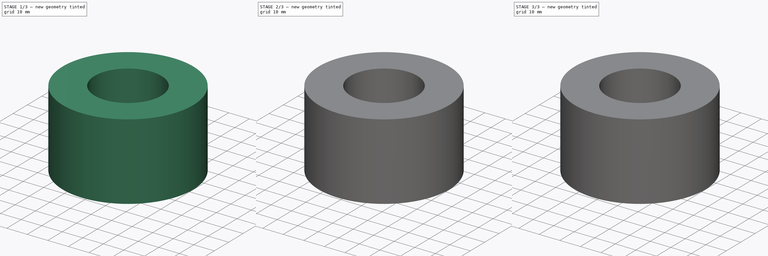
[diagram: build sequence overview — one tinted view per stage of 3, left to right]
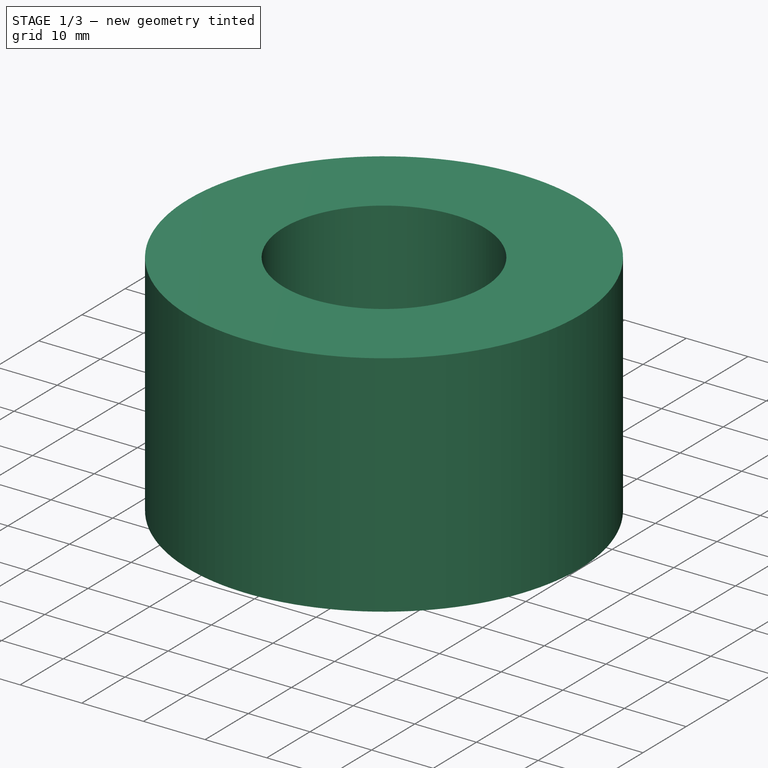
[diagram: stage 1 of 3 — iso view after this stage's code; geometry added in this stage tinted green]
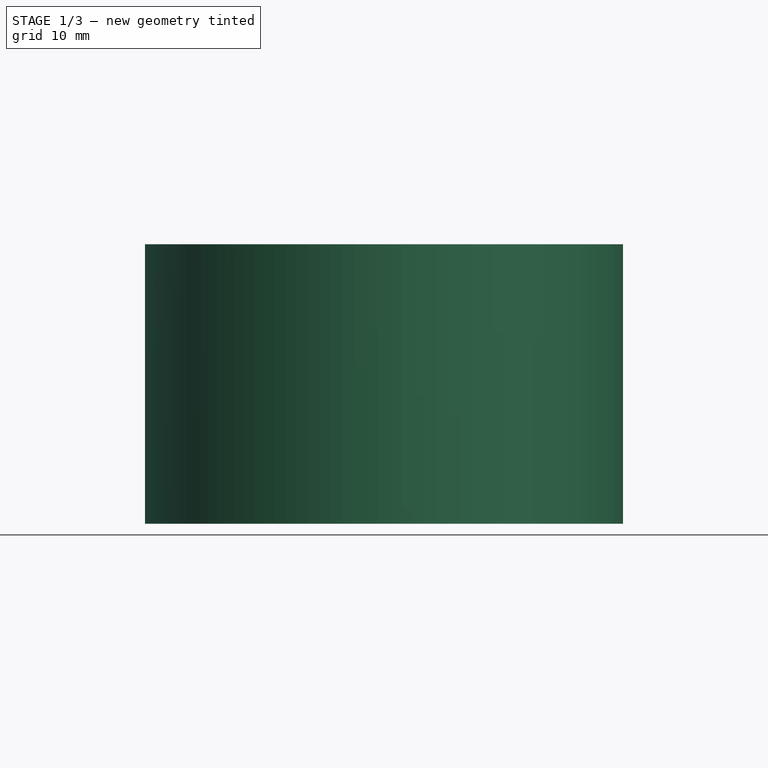
[diagram: stage 1 of 3 — front view after this stage's code; geometry added in this stage tinted green]
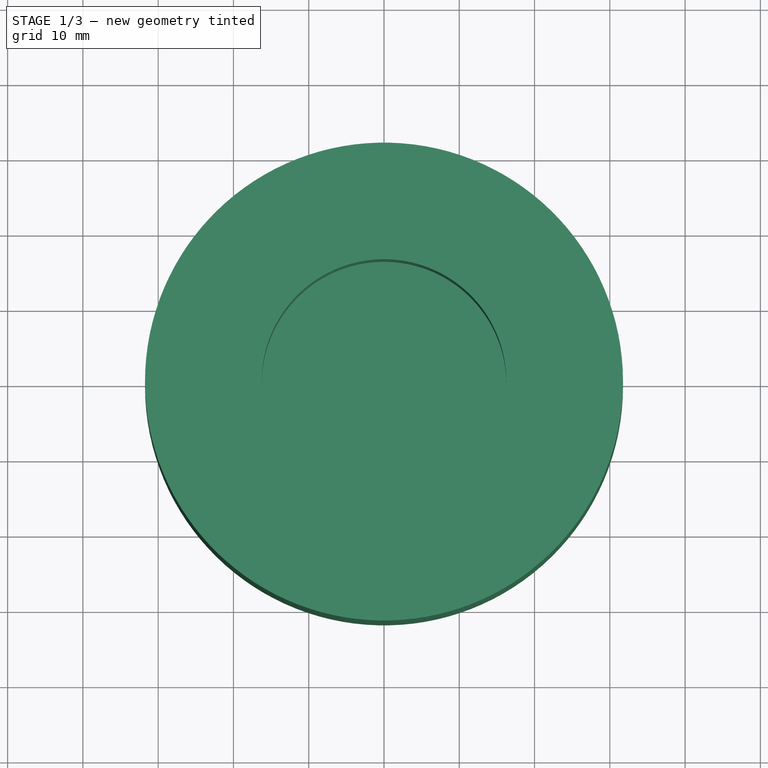
[diagram: stage 1 of 3 — top view after this stage's code; geometry added in this stage tinted green]
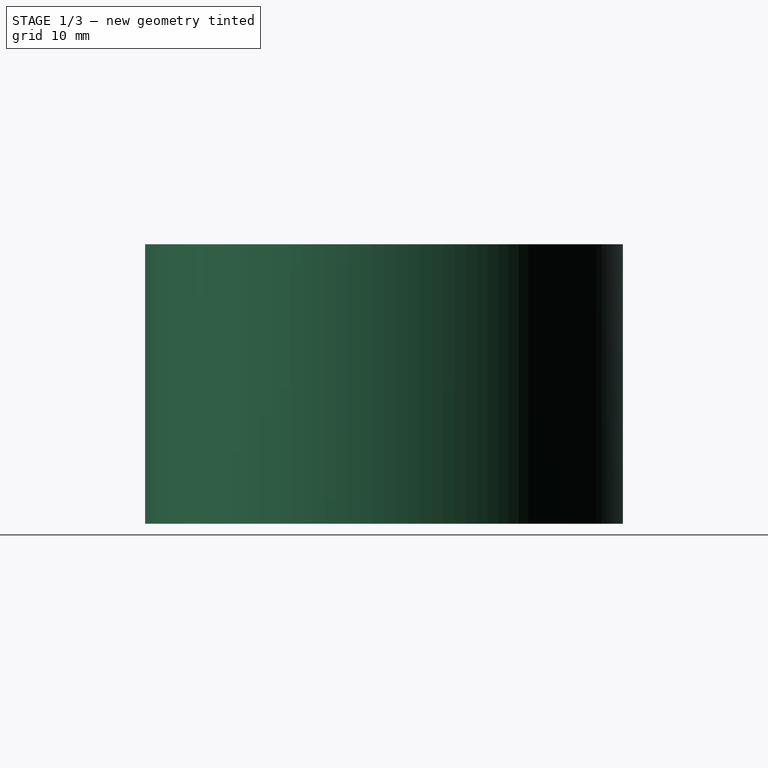
[diagram: stage 1 of 3 — right view after this stage's code; geometry added in this stage tinted green]
FCSTD DOCUMENT  (FreeCAD 0.15R4671 (Git))
Label: wheel
License: All rights reserved
LicenseURL: http://en.wikipedia.org/wiki/All_rights_reserved
objects: Sketcher::SketchObject×8, PartDesign::Pocket×6, PartDesign::Pad×2
note: 24 computed .brp shape members not serialized (recipe doc carries the construction recipe); baked Part::Feature solids carry a one-line shape summary decoded from their .brp

FEATURE [Sketcher::SketchObject] Sketch
  sketch-geometry (1):
    g0: Circle CenterX=0 CenterY=0 CenterZ=0 NormalX=0 NormalY=0 NormalZ=1 Radius=31.75
  constraints (2):
    c: Coincident(g0,g-1)
    c: Radius(g0) = 31.75
FEATURE [PartDesign::Pad] Pad
  Length = 37.1475
  Length2 = 100
  Sketch = -> Sketch
  Type = 0
FEATURE [Sketcher::SketchObject] Sketch001
  Placement = pos=(0,0,37.1475) rot=(0,0,1;0rad)
  Support = -> Pad [Face3]
  sketch-geometry (1):
    g0: Circle CenterX=0 CenterY=0 CenterZ=0 NormalX=0 NormalY=0 NormalZ=1 Radius=16.256
  constraints (2):
    c: Coincident(g0,g-1)
    c: Radius(g0) = 16.256
FEATURE [PartDesign::Pocket] Pocket
  Length = 19.9771
  Sketch = -> Sketch001
  Type = 0
FEATURE [Sketcher::SketchObject] Sketch002
  Placement = pos=(0,0,0) rot=(1,0,0;3.14159rad)
  Support = -> Pocket [Face2]
  sketch-geometry (1):
    g0: Circle CenterX=0 CenterY=0 CenterZ=0 NormalX=0 NormalY=0 NormalZ=1 Radius=16.256
  constraints (2):
    c: Radius(g0) = 16.256
    c: Coincident(g0,g-1)
FEATURE [PartDesign::Pocket] Pocket001
  Length = 14.8463
  Sketch = -> Sketch002
  Type = 0
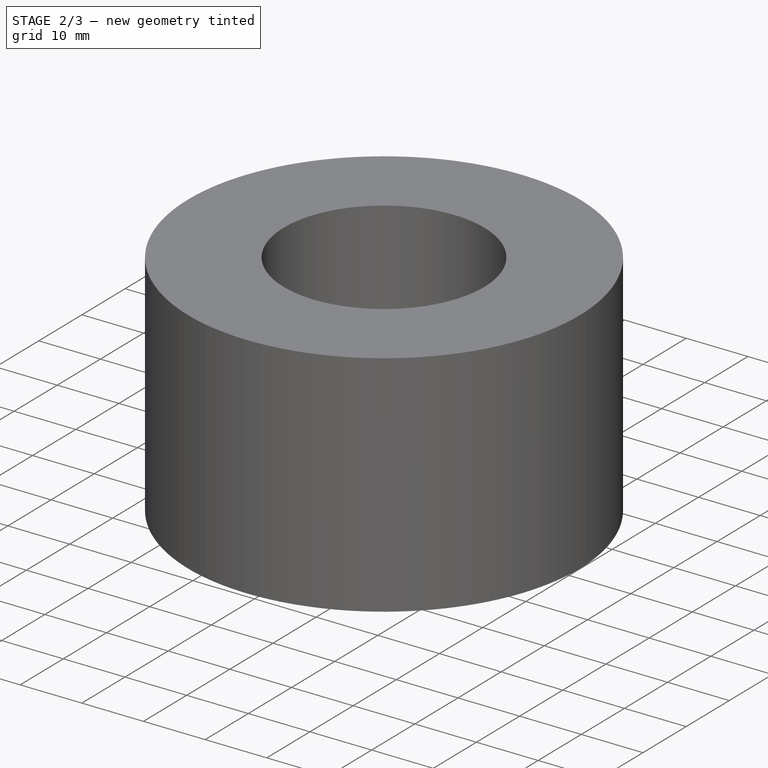
[diagram: stage 2 of 3 — iso view after this stage's code; geometry added in this stage tinted green]
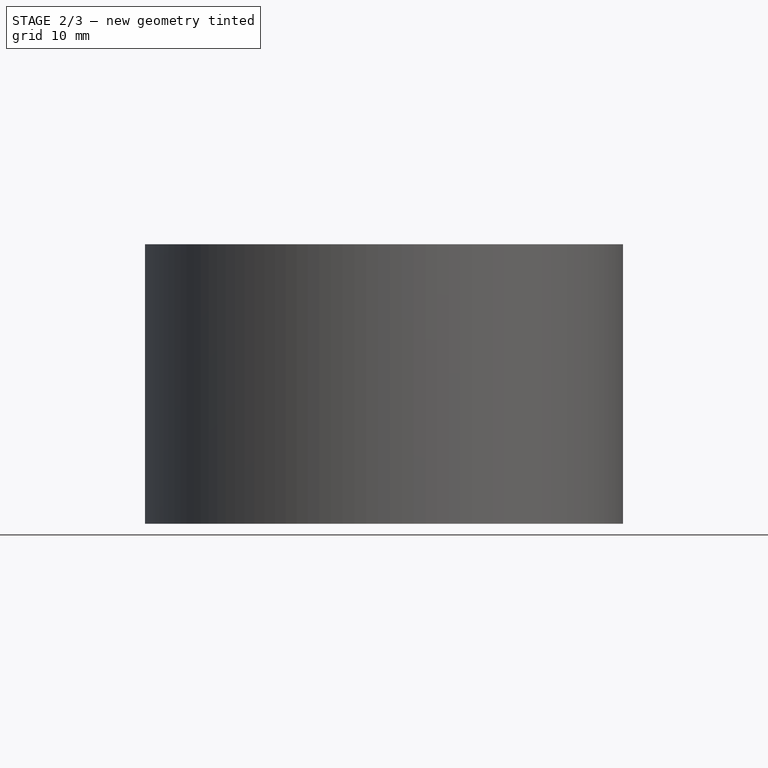
[diagram: stage 2 of 3 — front view after this stage's code; geometry added in this stage tinted green]
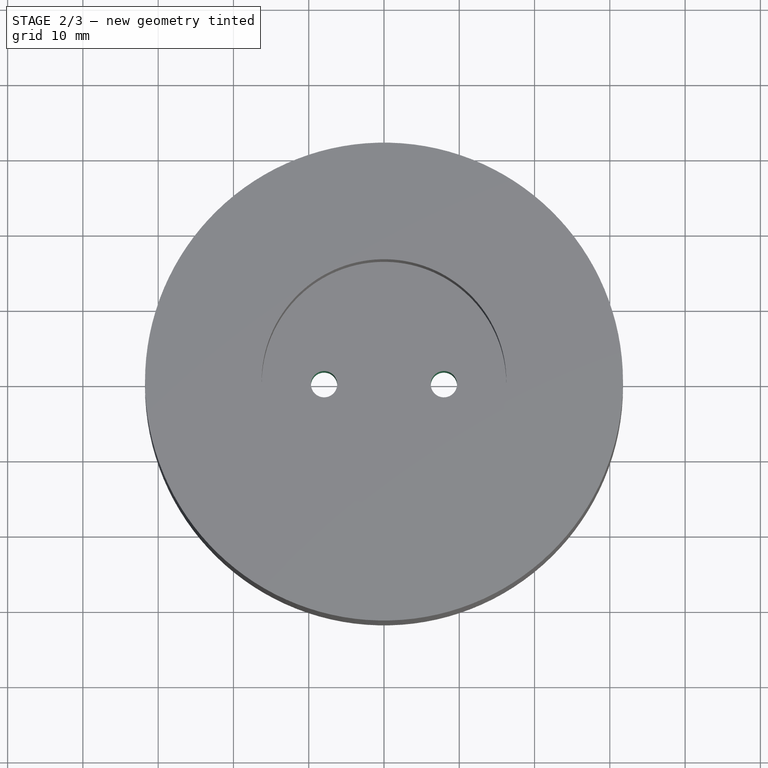
[diagram: stage 2 of 3 — top view after this stage's code; geometry added in this stage tinted green]
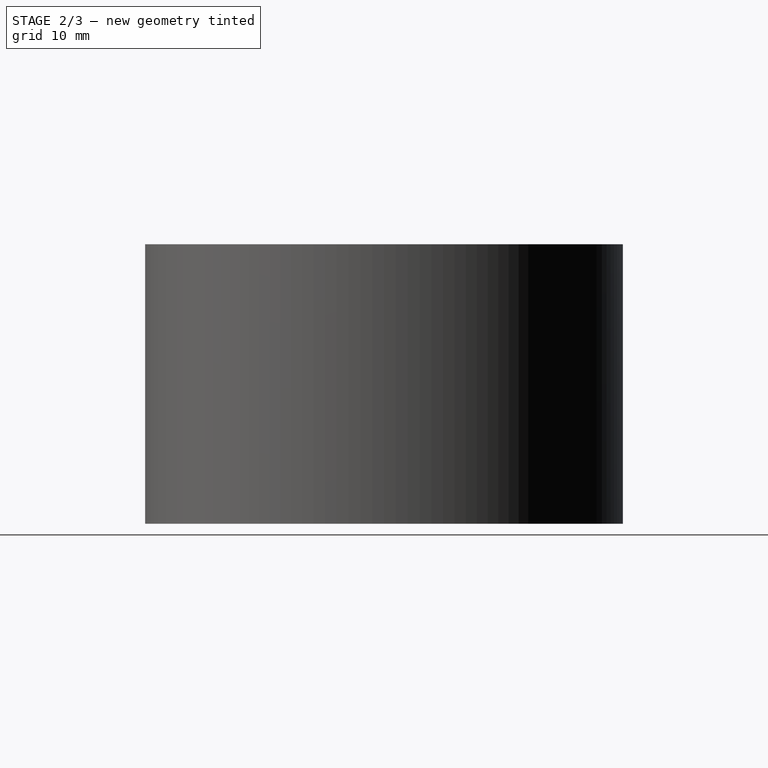
[diagram: stage 2 of 3 — right view after this stage's code; geometry added in this stage tinted green]
FEATURE [Sketcher::SketchObject] Sketch003
  Placement = pos=(0,0,14.8463) rot=(1,0,0;3.14159rad)
  Support = -> Pocket001 [Face6]
  sketch-geometry (10):
    g0: ArcOfCircle CenterX=0 CenterY=0 CenterZ=0 NormalX=0 NormalY=0 NormalZ=1 Radius=6.65734 StartAngle=3.69273 EndAngle=5.73205
    g1: LineSegment StartX=-7.95655 StartY=3.48615 StartZ=0 EndX=-5.67159 EndY=3.48615 EndZ=0
    g2: LineSegment StartX=-7.95655 StartY=-3.48615 StartZ=0 EndX=-5.67159 EndY=-3.48615 EndZ=0
    g3: LineSegment [constr] StartX=-7.95655 StartY=3.48615 StartZ=0 EndX=-7.95655 EndY=-3.48615 EndZ=0
    g4: LineSegment [constr] StartX=7.95655 StartY=3.48615 StartZ=0 EndX=7.95655 EndY=-3.48615 EndZ=0
    g5: ArcOfCircle CenterX=7.95655 CenterY=0 CenterZ=0 NormalX=0 NormalY=0 NormalZ=1 Radius=3.48615 StartAngle=4.71239 EndAngle=7.85398
    g6: ArcOfCircle CenterX=-7.95655 CenterY=0 CenterZ=0 NormalX=0 NormalY=0 NormalZ=1 Radius=3.48615 StartAngle=1.5708 EndAngle=4.71239
    g7: ArcOfCircle CenterX=0 CenterY=0 CenterZ=0 NormalX=0 NormalY=0 NormalZ=1 Radius=6.65734 StartAngle=0.551136 EndAngle=2.59046
    g8: LineSegment StartX=5.67159 StartY=-3.48615 StartZ=0 EndX=7.95655 EndY=-3.48615 EndZ=0
    g9: LineSegment StartX=5.67159 StartY=3.48615 StartZ=0 EndX=7.95655 EndY=3.48615 EndZ=0
  constraints (29):
    c: Coincident(g0,g-1)
    c: Radius(g0) = 6.65734
    c: Horizontal(g1)
    c: Horizontal(g2)
    c: Equal(g1,g2)
    c: DistanceY(g9,g8) = -6.9723
    c: DistanceY(g-1,g9) = 3.48615
    c: DistanceX(g-1,g9) = 7.95655
    c: Coincident(g3,g1)
    c: Coincident(g3,g2)
    c: Vertical(g3)
    c: Coincident(g4,g9)
    c: Coincident(g4,g8)
    c: DistanceX(g-1,g1) = -7.95655
    c: PointOnObject(g5,g4)
    c: Coincident(g5,g9)
    c: Coincident(g5,g8)
    c: PointOnObject(g6,g3)
    c: Coincident(g6,g1)
    c: Coincident(g6,g2)
    c: Equal(g0,g7)
    c: Coincident(g0,g7)
    c: Coincident(g2,g0)
    c: Coincident(g8,g0)
    c: Tangent(g2,g8)
    c: Coincident(g1,g7)
    c: Coincident(g9,g7)
    c: Tangent(g1,g9)
    c: Equal(g8,g9)
FEATURE [PartDesign::Pad] Pad001
  Length = 10.1219
  Length2 = 100
  Sketch = -> Sketch003
  Type = 0
FEATURE [Sketcher::SketchObject] Sketch004
  Placement = pos=(0,0,4.7244) rot=(1,0,0;3.14159rad)
  Support = -> Pad001 [Face16]
  sketch-geometry (2):
    g0: Circle CenterX=7.95782 CenterY=0 CenterZ=0 NormalX=0 NormalY=0 NormalZ=1 Radius=1.74625
    g1: Circle CenterX=-7.95782 CenterY=0 CenterZ=0 NormalX=0 NormalY=0 NormalZ=1 Radius=1.74625
  constraints (6):
    c: DistanceX(g-1,g0) = 7.95782
    c: DistanceX(g-1,g1) = -7.95782
    c: DistanceY(g-1,g1) = 0
    c: DistanceY(g-1,g0) = 0
    c: Radius(g0) = 1.74625
    c: Equal(g0,g1)
FEATURE [PartDesign::Pocket] Pocket002
  Length = 4.99999
  Sketch = -> Sketch004
  Type = 1
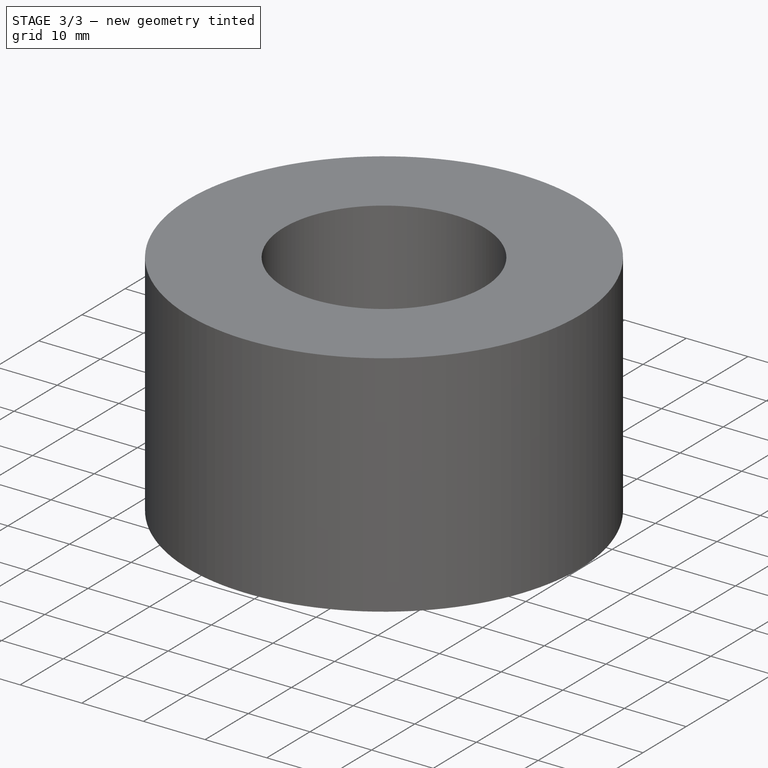
[diagram: stage 3 of 3 — iso view after this stage's code; geometry added in this stage tinted green]
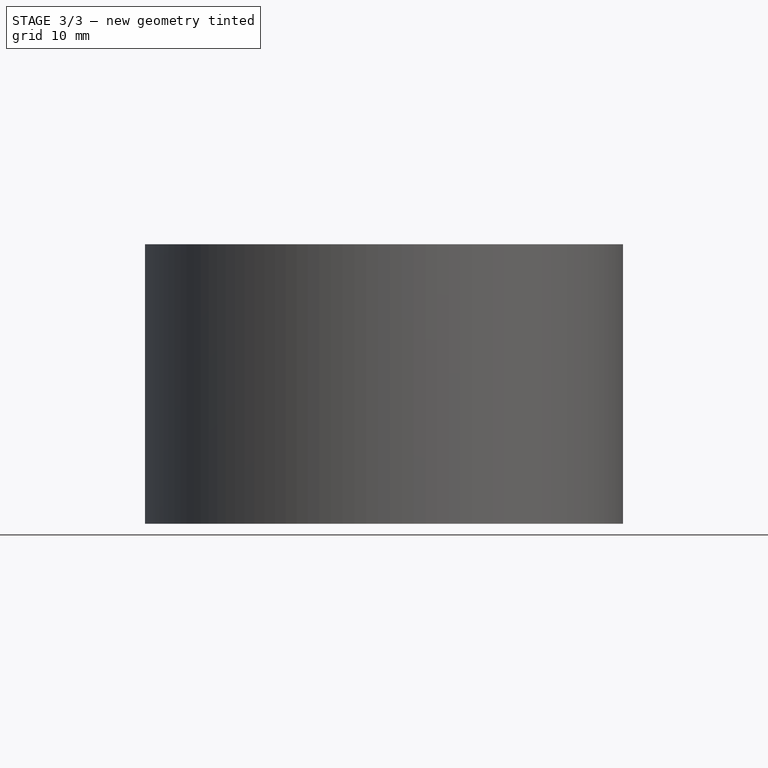
[diagram: stage 3 of 3 — front view after this stage's code; geometry added in this stage tinted green]
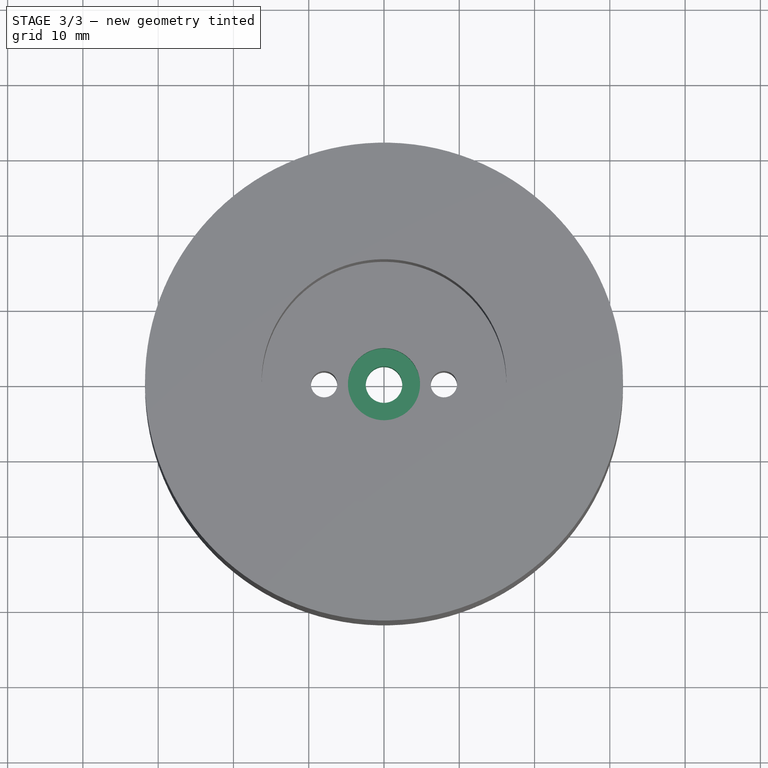
[diagram: stage 3 of 3 — top view after this stage's code; geometry added in this stage tinted green]
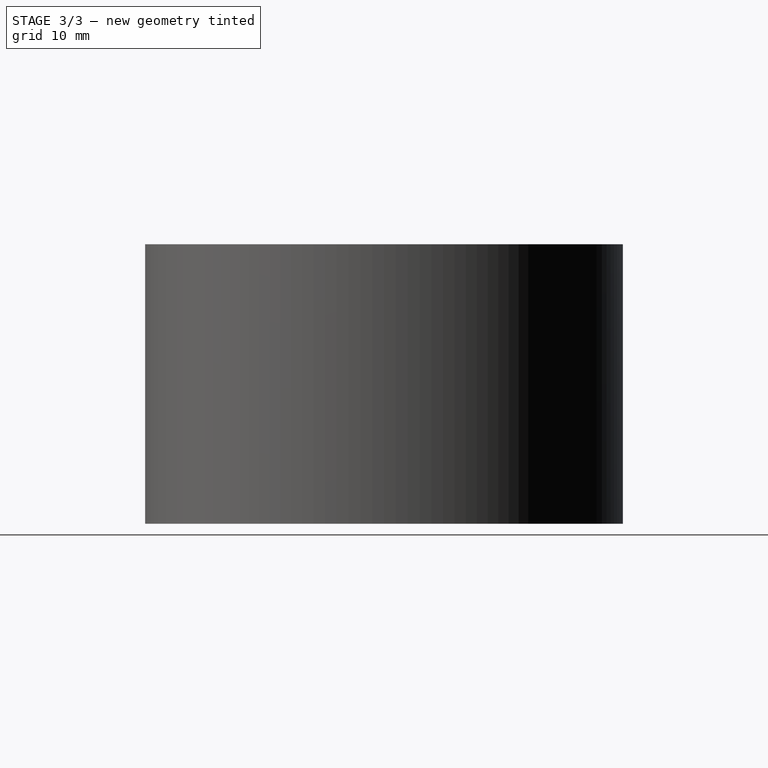
[diagram: stage 3 of 3 — right view after this stage's code; geometry added in this stage tinted green]
FEATURE [Sketcher::SketchObject] Sketch005
  Placement = pos=(0,0,4.7244) rot=(1,0,0;3.14159rad)
  Support = -> Pocket002 [Face18]
  sketch-geometry (1):
    g0: Circle CenterX=0 CenterY=0 CenterZ=0 NormalX=0 NormalY=0 NormalZ=1 Radius=4.7879
  constraints (2):
    c: Coincident(g0,g-1)
    c: Radius(g0) = 4.7879
FEATURE [PartDesign::Pocket] Pocket003
  Length = 2.6924
  Sketch = -> Sketch005
  Type = 0
FEATURE [Sketcher::SketchObject] Sketch006
  Placement = pos=(0,0,7.4168) rot=(1,0,0;3.14159rad)
  Support = -> Pocket003 [Face20]
  sketch-geometry (1):
    g0: Circle CenterX=0 CenterY=0 CenterZ=0 NormalX=0 NormalY=0 NormalZ=1 Radius=2.4253
  constraints (2):
    c: Coincident(g0,g-1)
    c: Radius(g0) = 2.4253
FEATURE [PartDesign::Pocket] Pocket004
  Length = 4.99999
  Sketch = -> Sketch006
  Type = 1
FEATURE [Sketcher::SketchObject] Sketch007
  Placement = pos=(0,0,17.1704) rot=(0,0,1;0rad)
  Support = -> Pocket004 [Face7]
  sketch-geometry (1):
    g0: Circle CenterX=0 CenterY=0 CenterZ=0 NormalX=0 NormalY=0 NormalZ=1 Radius=4.7879
  constraints (2):
    c: Coincident(g0,g-1)
    c: Radius(g0) = 4.7879
FEATURE [PartDesign::Pocket] Pocket005
  Length = 3.1242
  Sketch = -> Sketch007
  Type = 0
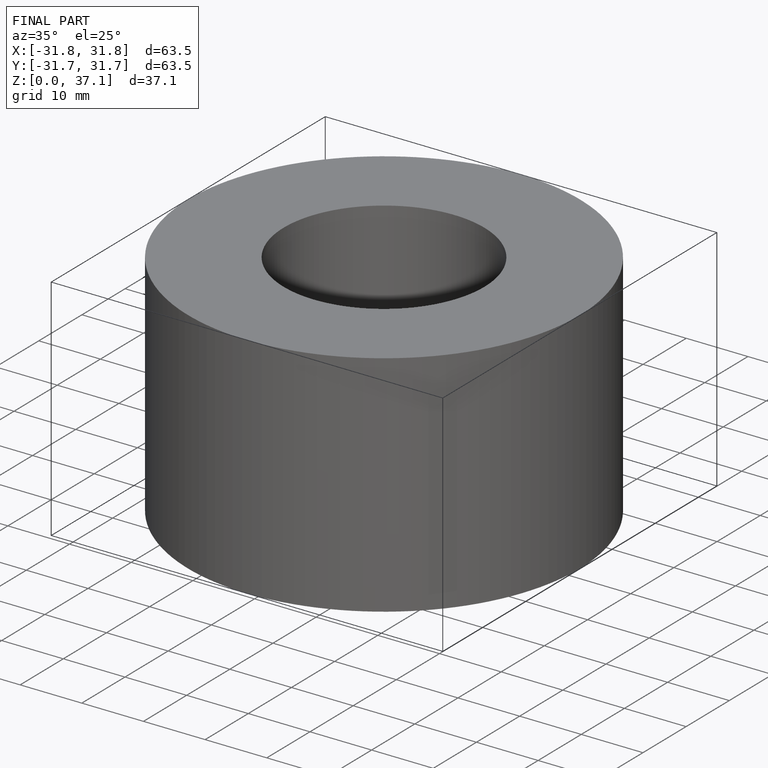
[diagram: finished part — iso view with bounding-box wireframe]
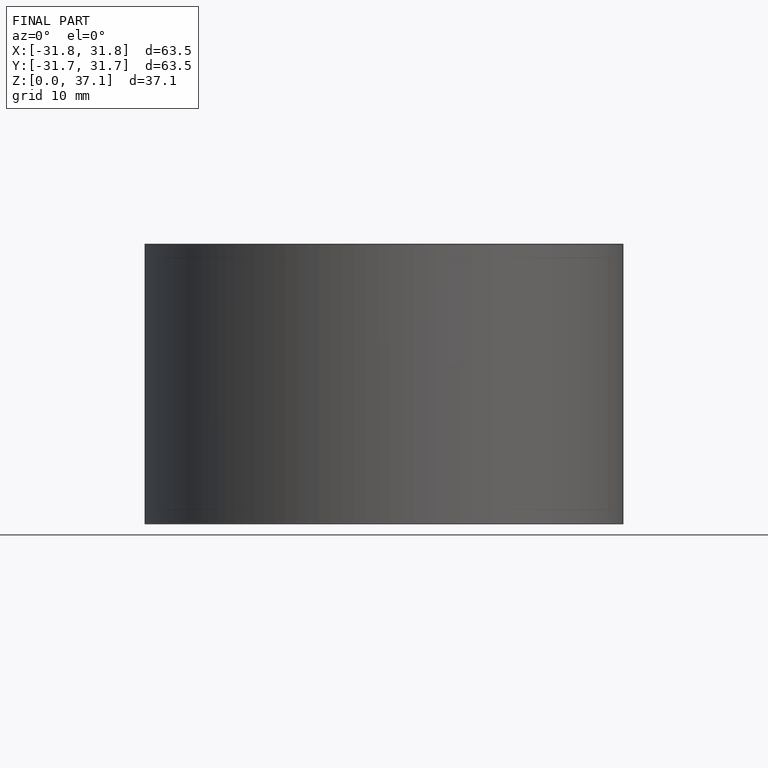
[diagram: finished part — front view with bounding-box wireframe]
